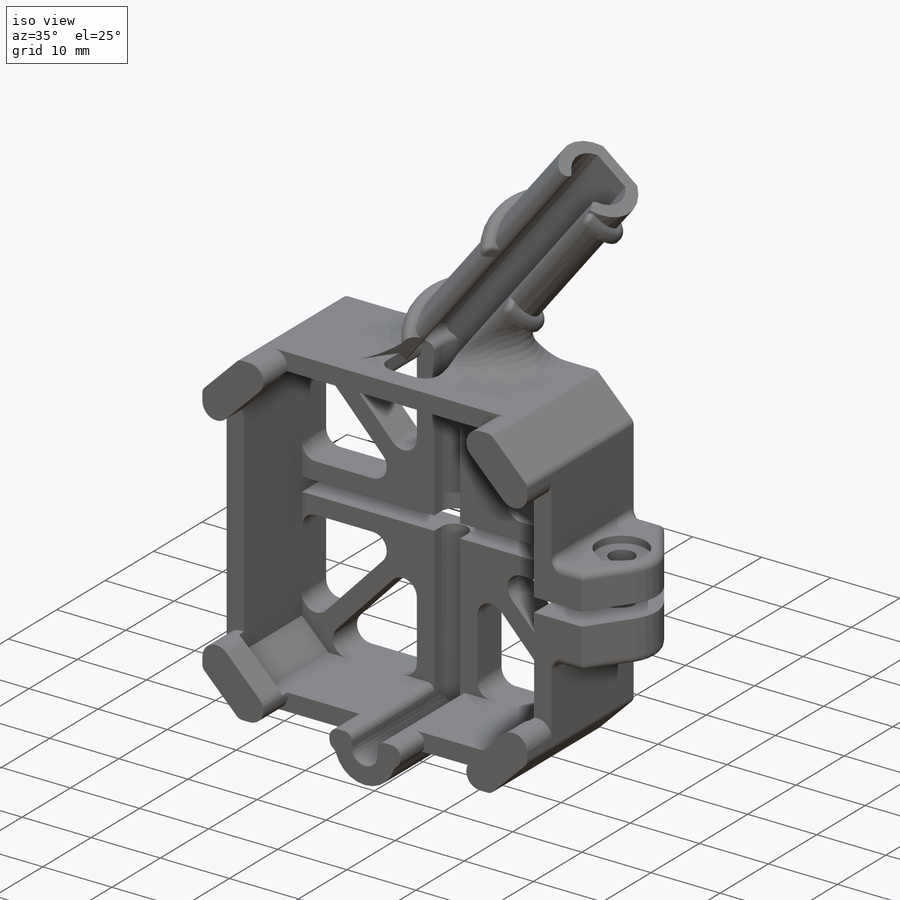
[diagram: iso view]
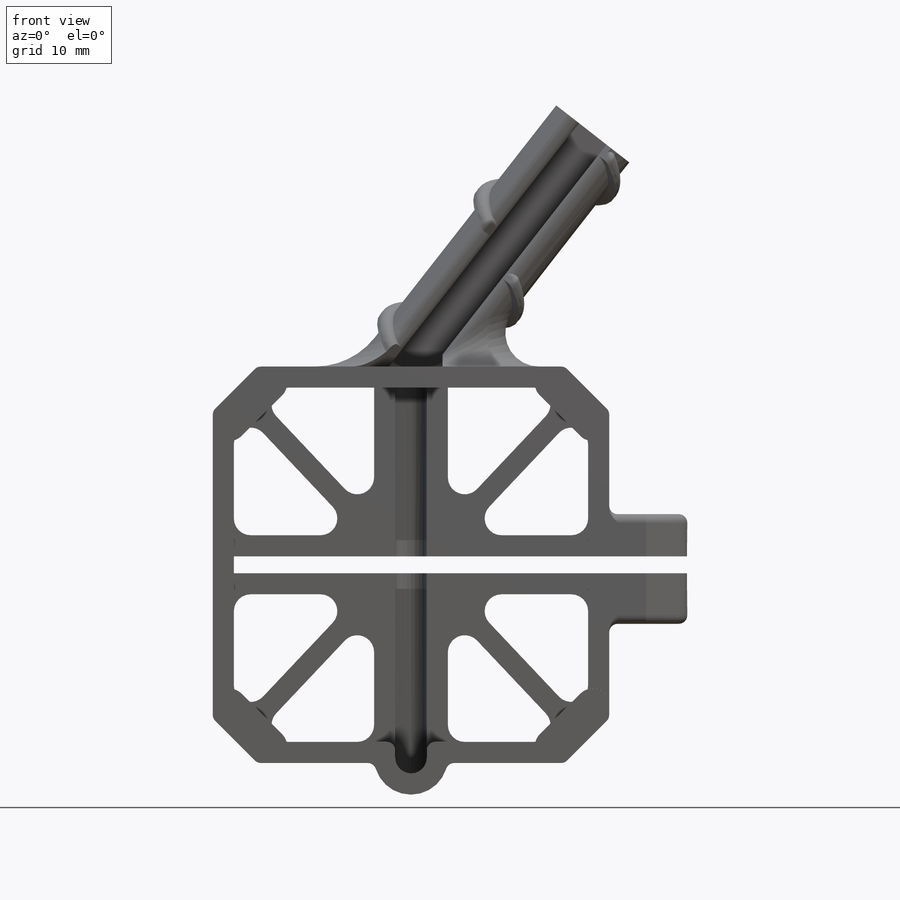
[diagram: front view]
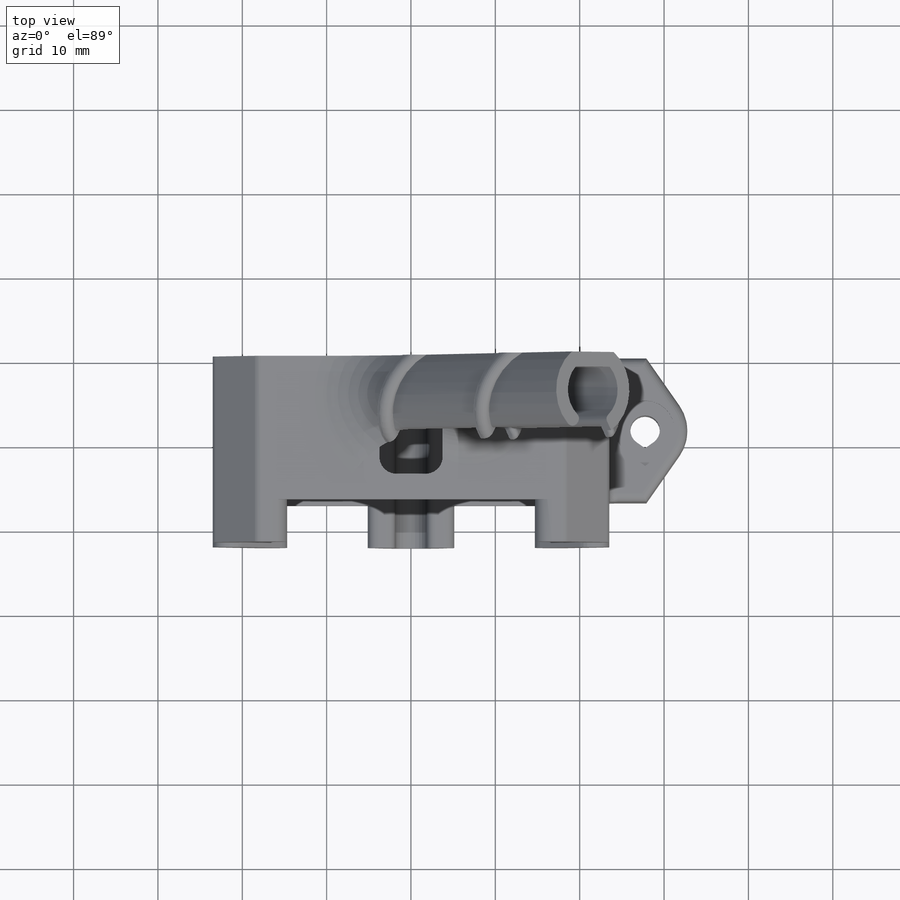
[diagram: top view]
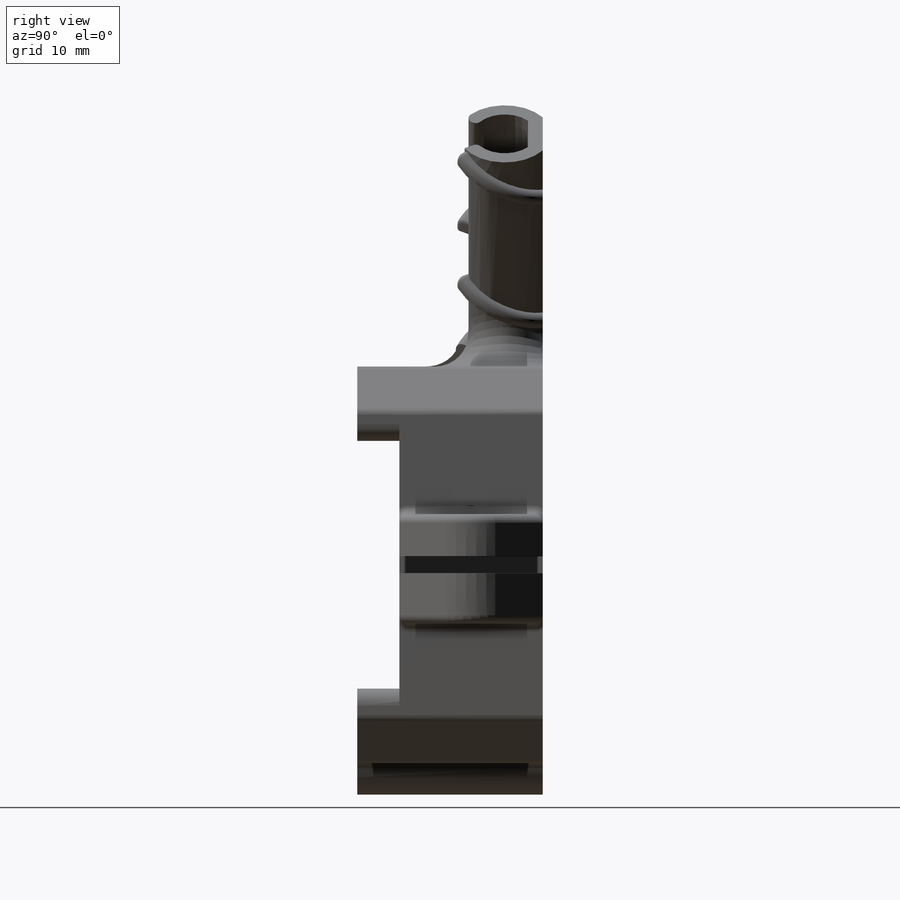
[diagram: right view]
SOLIDWORKS PART (.sldprt)
format: sldprt  version: not decoded by parser v0  size: 1,548,800 bytes
history: native  units: mm
features: fillet x28, sketch x27, cut_extrude x13, extrude x11, chamfer x2, material x1, plane x1, helix x1, sweep x1 (+11 scaffold rows collapsed)
feature tree (96):
  scaffold x11  (default folders/planes/origin — collapsed)
  material  "Material <not specified>"
  sketch  "Sketch1"  dims[D1=29.5mm D2=4.0]
  extrude  "Boss-Extrude1"  Depth=5mm
  sketch  "Sketch2"  dims[D2=~1.096851mm D1=3.5mm]
  cut_extrude  "Cut-Extrude1"  [1 undecoded]
  sketch  "Sketch3"  dims[c1.D1=2.5mm c1.D2=0.0mm c2.D1=2.5mm c2.D3=0.0mm c3.D1=2.5mm c3.D3=0.0mm]
  extrude  "Boss-Extrude2"  Depth=12mm
  sketch  "Sketch4"  dims[c1.D2=7.5mm c1.D1=9.0mm c2.D2=4.0mm c2.D3=4.0mm]
  cut_extrude  "Cut-Extrude2"  Depth=12mm
  sketch  "Sketch5"  dims[D1=30.0mm]
  plane  "Plane2"
  sketch  "Sketch7"  dims[c1.D1=~7.574119mm c2.D1=35.0deg c2.D2=~7.724638mm c3.D2=30.0deg c3.D1=1.76mm]
  extrude  "Boss-Extrude3"  Depth=5mm
  sketch  "Sketch9"  dims[D1=0.0mm]
  extrude  "Boss-Extrude4"  [1 undecoded]
  fillet  "Fillet4"  Radius=9mm
  sketch  "Sketch15"  dims[D1=~6.133158mm]
  helix  "Helix/Spiral1"  Pitch=42.55mm
  sketch  "Sketch16"  dims[D1=1.2mm D2=1.6mm]
  sweep  "Sweep1"
  sketch  "Sketch19"
  cut_extrude  "Cut-Extrude6"  [1 undecoded]
  sketch  "Sketch20"
  cut_extrude  "Cut-Extrude7"  [1 undecoded]
  sketch  "Sketch21"
  cut_extrude  "Cut-Extrude9"  Depth=23mm
  fillet  "Fillet6"  Radius=1mm
  sketch  "Sketch10"  dims[D1=0.0mm]
  cut_extrude  "Cut-Extrude3"  Depth=6mm
  fillet  "Fillet7"  Radius=4mm
  fillet  "Fillet8"  Radius=1mm
  fillet  "Fillet9"  Radius=0.6mm
  fillet  "Fillet10"  Radius=1mm
  fillet  "Fillet11"  Radius=1mm
  sketch  "Sketch11"  dims[D1=1.875mm]
  cut_extrude  "Cut-Extrude4"  [1 undecoded]
  sketch  "Sketch12"  dims[D1=2.5mm]
  extrude  "Boss-Extrude5"  [1 undecoded]
  fillet  "Fillet12"  Radius=1mm
  fillet  "Fillet13"  Radius=1mm
  sketch  "Sketch13"
  extrude  "Boss-Extrude7"  [1 undecoded]
  fillet  "Fillet15"  Radius=1mm
  sketch  "Sketch22"  dims[D1=0.0mm D2=1.0mm]
  cut_extrude  "Cut-Extrude12"  Depth=34mm
  fillet  "Fillet16"  Radius=0.5mm
  fillet  "Fillet17"  Radius=0.5mm
  sketch  "Sketch14"  dims[c1.D1=1.0mm c1.D2=1.0mm c2.D1=1.0mm c2.D2=1.0mm]
  cut_extrude  "Cut-Extrude5"  [1 undecoded]
  sketch  "Sketch25"  dims[c1.D1=0.0mm c1.D2=0.0mm c1.D3=0.0mm c1.D4=0.0mm c1.D5=2.5mm c1.D6=2.5mm c1.D7=1.25mm c1.D8=1.25mm c2.D1=2.5mm c2.D2=2.5mm c2.D3=2.5mm c2.D5=1.25mm c2.D6=1.25mm]
  cut_extrude  "Cut-Extrude13"  [1 undecoded]
  fillet  "Fillet19"  Radius=2mm
  fillet  "Fillet18"  Radius=2mm
  fillet  "Fillet20"  Radius=2mm
  fillet  "Fillet21"  Radius=2mm
  fillet  "Fillet22"  Radius=2mm
  fillet  "Fillet23"  Radius=2mm
  fillet  "Fillet24"  Radius=2mm
  fillet  "Fillet25"  Radius=2mm
  fillet  "Fillet26"  Radius=2mm
  fillet  "Fillet27"  Radius=1mm
  fillet  "Fillet28"  Radius=2mm
  sketch  "Sketch27"  dims[D1=25.0mm D2=25.0mm]
  extrude  "Boss-Extrude8"  Depth=5mm
  chamfer  "Chamfer2"  Distance=1.25mm Angle=45deg
  chamfer  "Chamfer1"  Distance=0.75mm Angle=45deg
  fillet  "Fillet29"  Radius=2mm
  sketch  "Sketch29"  dims[c1.D2=17.0mm c2.D2=35.0deg c2.D3=17.0mm c3.D3=35.0deg c3.D2=~3.476971mm c4.D2=35.0deg c4.D1=4.25mm c4.D4=1.25mm]
  extrude  "Boss-Extrude9"  Depth=5mm
  sketch  "Sketch30"  dims[D1=0.0mm]
  extrude  "Boss-Extrude10"  Depth=5mm
  sketch  "Sketch31"  dims[D1=0.0mm]
  extrude  "Boss-Extrude11"  Depth=5mm
  fillet  "Fillet30"  Radius=1.25mm
  sketch  "Sketch32"  dims[c1.D1=~2.833955mm c2.D1=0.0deg]
  cut_extrude  "Cut-Extrude14"  Depth=1.5mm
  sketch  "Sketch33"  dims[D1=0.0mm D2=0.0mm]
  extrude  "Boss-Extrude12"  Depth=1mm
  sketch  "Sketch34"  dims[D1=1.75mm D2=1.75mm]
  cut_extrude  "Cut-Extrude15"  Depth=1mm
  fillet  "Fillet31"  Radius=1mm
  fillet  "Fillet32"  Radius=1mm
  sketch  "Sketch35"  dims[D1=2.0mm D2=1.75mm D3=1.75mm D4=1.75mm D5=1.75mm D6=1.75mm D7=1.75mm D8=1.75mm]
  cut_extrude  "Cut-Extrude16"  Depth=0.5mm
  fillet  "Fillet33"  Radius=0.5mm
decode coverage: 69 of 83 modeling features carry decoded parameters
note: ~ marks probable driven/reference dimensions
note: 9 parameter values undecoded
summary: no parameter record found for 9 features
note: suppression state not decoded; provenance and decode notes live in map.json
